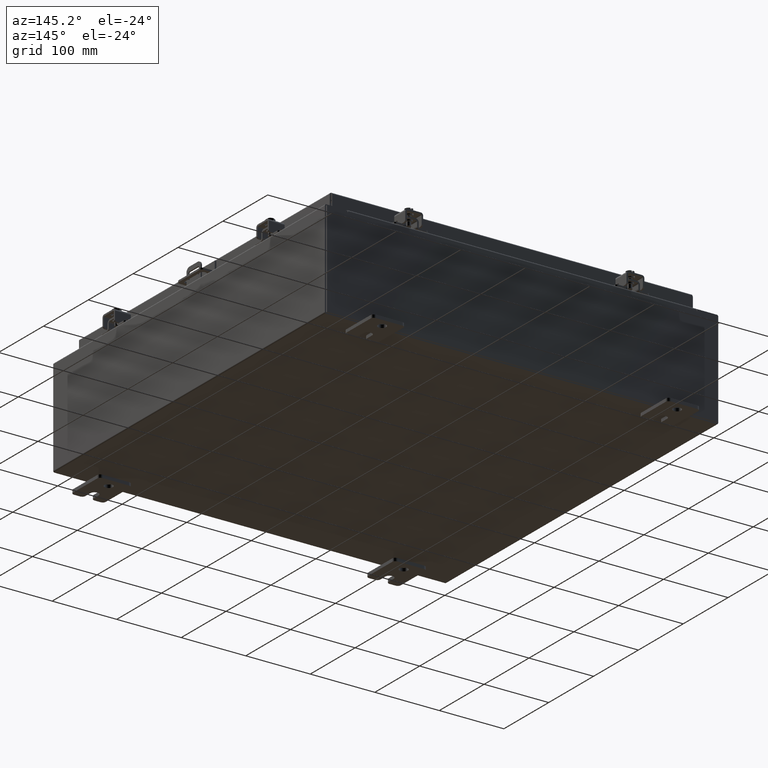
[diagram: clean part render]
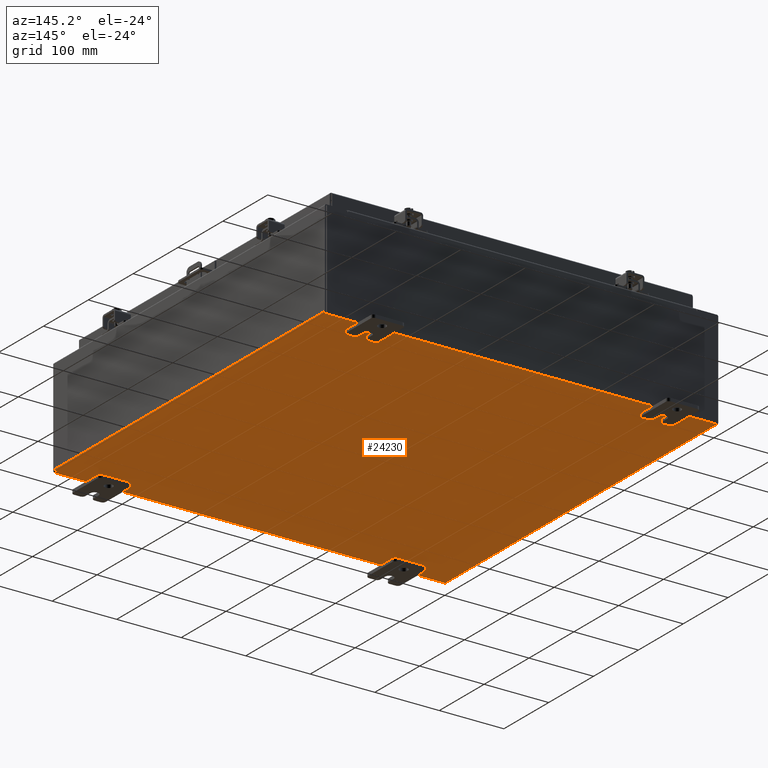
[diagram: same view with one face highlighted and labeled with its STEP entity id]
A machine part, auxiliary view. The second image highlights one B-rep face of the part: STEP entity #24230.
In plain terms, the highlighted planar face has unit normal (0, 0, -1).
Its self-contained STEP definition (entity closure, byte-faithful):
#560 = CARTESIAN_POINT ( 'NONE',  ( -12.00000000000000400, 11.92529999999999800, -0.07470000000000000300 ) ) ;
#3402 = CARTESIAN_POINT ( 'NONE',  ( -11.91230000000000400, 11.92529999999999800, -0.07470000000000000300 ) ) ;
#5371 = VECTOR ( 'NONE', #28741, 39.37007874015748100 ) ;
#5523 = CARTESIAN_POINT ( 'NONE',  ( 0.0000000000000000000, 0.0000000000000000000, -0.07470000000000000300 ) ) ;
#6657 = VECTOR ( 'NONE', #28875, 39.37007874015748100 ) ;
#8059 = DIRECTION ( 'NONE',  ( -1.000000000000000000, 0.0000000000000000000, -0.0000000000000000000 ) ) ;
#8130 = DIRECTION ( 'NONE',  ( -1.000000000000000000, -0.0000000000000000000, -0.0000000000000000000 ) ) ;
#8514 = CARTESIAN_POINT ( 'NONE',  ( 11.91229999999998900, -11.92530000000000400, -0.07470000000000000300 ) ) ;
#8843 = ORIENTED_EDGE ( 'NONE', *, *, #20156, .T. ) ;
#9626 = CARTESIAN_POINT ( 'NONE',  ( -11.91230000000000400, -11.92530000000000400, -0.07469999999999994700 ) ) ;
#12150 = DIRECTION ( 'NONE',  ( -0.0000000000000000000, 1.000000000000000000, -0.0000000000000000000 ) ) ;
#12592 = CARTESIAN_POINT ( 'NONE',  ( -11.91230000000000400, -11.92530000000000000, -0.07469999999999994700 ) ) ;
#12699 = VERTEX_POINT ( 'NONE', #12592 ) ;
#13031 = VERTEX_POINT ( 'NONE', #14086 ) ;
#13290 = LINE ( 'NONE', #560, #31691 ) ;
#13808 = EDGE_CURVE ( 'NONE', #13031, #19425, #13290, .T. ) ;
#14086 = CARTESIAN_POINT ( 'NONE',  ( 11.91229999999999800, 11.92529999999999600, -0.07469999999999994700 ) ) ;
#14122 = LINE ( 'NONE', #23830, #6657 ) ;
#14243 = VECTOR ( 'NONE', #12150, 39.37007874015748100 ) ;
#16271 = EDGE_LOOP ( 'NONE', ( #23187, #18928, #21342, #8843 ) ) ;
#18179 = EDGE_CURVE ( 'NONE', #12699, #19425, #21696, .T. ) ;
#18928 = ORIENTED_EDGE ( 'NONE', *, *, #18179, .T. ) ;
#19425 = VERTEX_POINT ( 'NONE', #3402 ) ;
#20156 = EDGE_CURVE ( 'NONE', #13031, #25309, #14122, .T. ) ;
#20964 = FACE_OUTER_BOUND ( 'NONE', #16271, .T. ) ;
#21342 = ORIENTED_EDGE ( 'NONE', *, *, #13808, .F. ) ;
#21696 = LINE ( 'NONE', #9626, #14243 ) ;
#23041 = DIRECTION ( 'NONE',  ( 0.0000000000000000000, 0.0000000000000000000, -1.000000000000000000 ) ) ;
#23187 = ORIENTED_EDGE ( 'NONE', *, *, #30941, .F. ) ;
#23830 = CARTESIAN_POINT ( 'NONE',  ( 11.91229999999999800, 11.92529999999999800, -0.07469999999999994700 ) ) ;
#24230 = ADVANCED_FACE ( 'NONE', ( #20964 ), #25445, .T. ) ;
#25309 = VERTEX_POINT ( 'NONE', #8514 ) ;
#25445 = PLANE ( 'NONE',  #31117 ) ;
#26208 = CARTESIAN_POINT ( 'NONE',  ( -12.00000000000000400, -11.92530000000000400, -0.07470000000000000300 ) ) ;
#28741 = DIRECTION ( 'NONE',  ( 1.000000000000000000, 0.0000000000000000000, 0.0000000000000000000 ) ) ;
#28875 = DIRECTION ( 'NONE',  ( -0.0000000000000000000, -1.000000000000000000, -0.0000000000000000000 ) ) ;
#30941 = EDGE_CURVE ( 'NONE', #12699, #25309, #32010, .T. ) ;
#31117 = AXIS2_PLACEMENT_3D ( 'NONE', #5523, #23041, #8059 ) ;
#31691 = VECTOR ( 'NONE', #8130, 39.37007874015748100 ) ;
#32010 = LINE ( 'NONE', #26208, #5371 ) ;